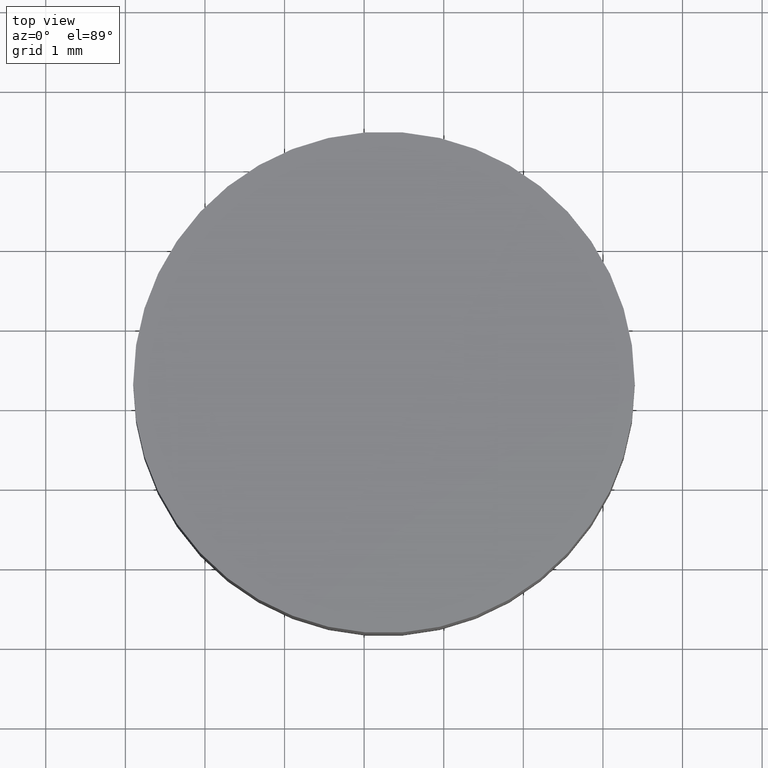
[diagram: clean part render]
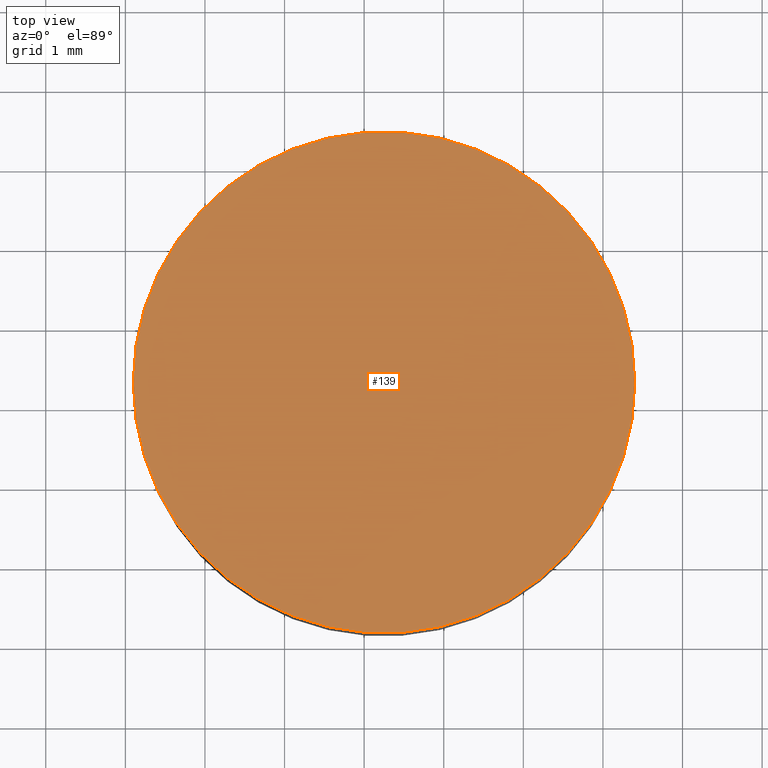
[diagram: same view with one face highlighted and labeled with its STEP entity id]
A machine part, top view. The second image highlights one B-rep face of the part: STEP entity #139.
In plain terms, the highlighted planar face has unit normal (0, 0, 1).
Its self-contained STEP definition (entity closure, byte-faithful):
#7 = PLANE ( 'NONE',  #61 ) ;
#17 = DIRECTION ( 'NONE',  ( 1.000000000000000000, 0.0000000000000000000, -0.0000000000000000000 ) ) ;
#22 = CARTESIAN_POINT ( 'NONE',  ( 20.24958715517702100, 12.31264836690532000, 2.299999999999999800 ) ) ;
#23 = CIRCLE ( 'NONE', #120, 3.149999999999999900 ) ;
#26 = CARTESIAN_POINT ( 'NONE',  ( 23.39958715517702000, 12.31264836690532000, 2.299999999999999800 ) ) ;
#29 = EDGE_CURVE ( 'NONE', #129, #54, #23, .T. ) ;
#34 = DIRECTION ( 'NONE',  ( 1.000000000000000000, 0.0000000000000000000, 0.0000000000000000000 ) ) ;
#37 = CARTESIAN_POINT ( 'NONE',  ( 20.24958715517702100, 12.31264836690532000, 2.299999999999999800 ) ) ;
#42 = CIRCLE ( 'NONE', #128, 3.149999999999999900 ) ;
#47 = CARTESIAN_POINT ( 'NONE',  ( 20.24958715517702100, 12.31264836690532000, 2.299999999999999800 ) ) ;
#50 = FACE_OUTER_BOUND ( 'NONE', #133, .T. ) ;
#54 = VERTEX_POINT ( 'NONE', #65 ) ;
#61 = AXIS2_PLACEMENT_3D ( 'NONE', #47, #104, #17 ) ;
#65 = CARTESIAN_POINT ( 'NONE',  ( 17.09958715517701900, 12.31264836690532000, 2.299999999999999800 ) ) ;
#96 = DIRECTION ( 'NONE',  ( 0.0000000000000000000, 0.0000000000000000000, 1.000000000000000000 ) ) ;
#102 = ORIENTED_EDGE ( 'NONE', *, *, #29, .T. ) ;
#104 = DIRECTION ( 'NONE',  ( 0.0000000000000000000, 0.0000000000000000000, 1.000000000000000000 ) ) ;
#117 = ORIENTED_EDGE ( 'NONE', *, *, #119, .T. ) ;
#119 = EDGE_CURVE ( 'NONE', #54, #129, #42, .T. ) ;
#120 = AXIS2_PLACEMENT_3D ( 'NONE', #22, #96, #34 ) ;
#125 = DIRECTION ( 'NONE',  ( 0.0000000000000000000, 0.0000000000000000000, 1.000000000000000000 ) ) ;
#128 = AXIS2_PLACEMENT_3D ( 'NONE', #37, #125, #135 ) ;
#129 = VERTEX_POINT ( 'NONE', #26 ) ;
#133 = EDGE_LOOP ( 'NONE', ( #117, #102 ) ) ;
#135 = DIRECTION ( 'NONE',  ( 1.000000000000000000, 0.0000000000000000000, 0.0000000000000000000 ) ) ;
#139 = ADVANCED_FACE ( 'NONE', ( #50 ), #7, .T. ) ;